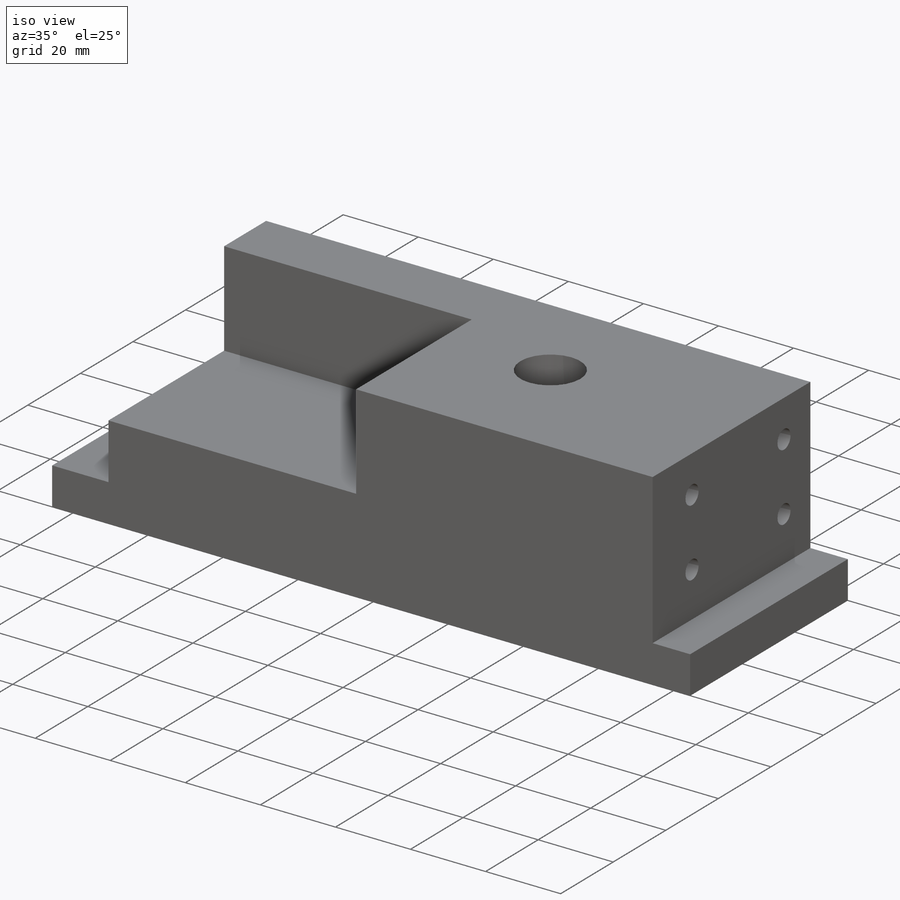
[diagram: iso view]
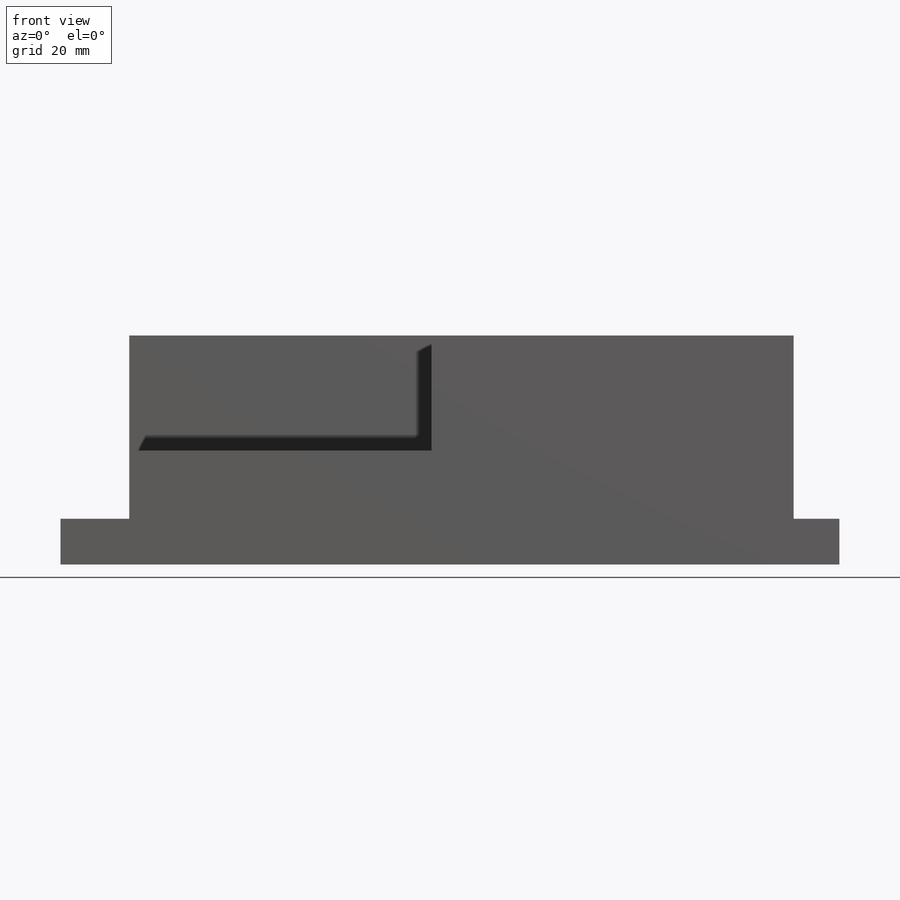
[diagram: front view]
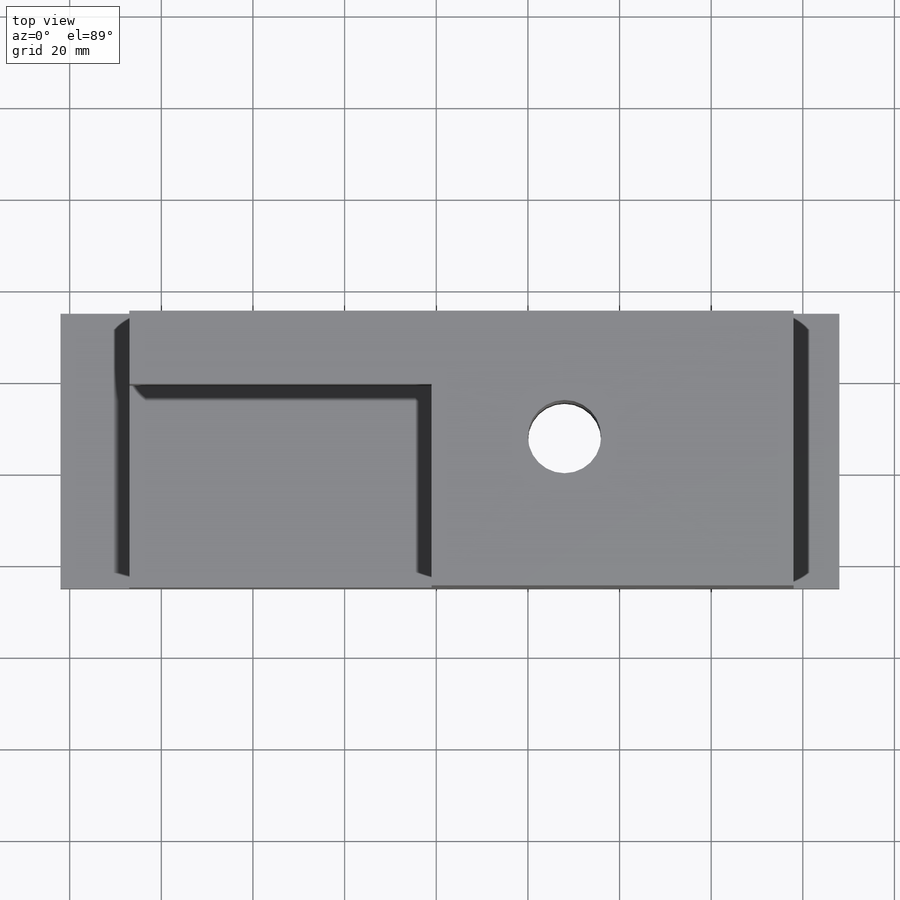
[diagram: top view]
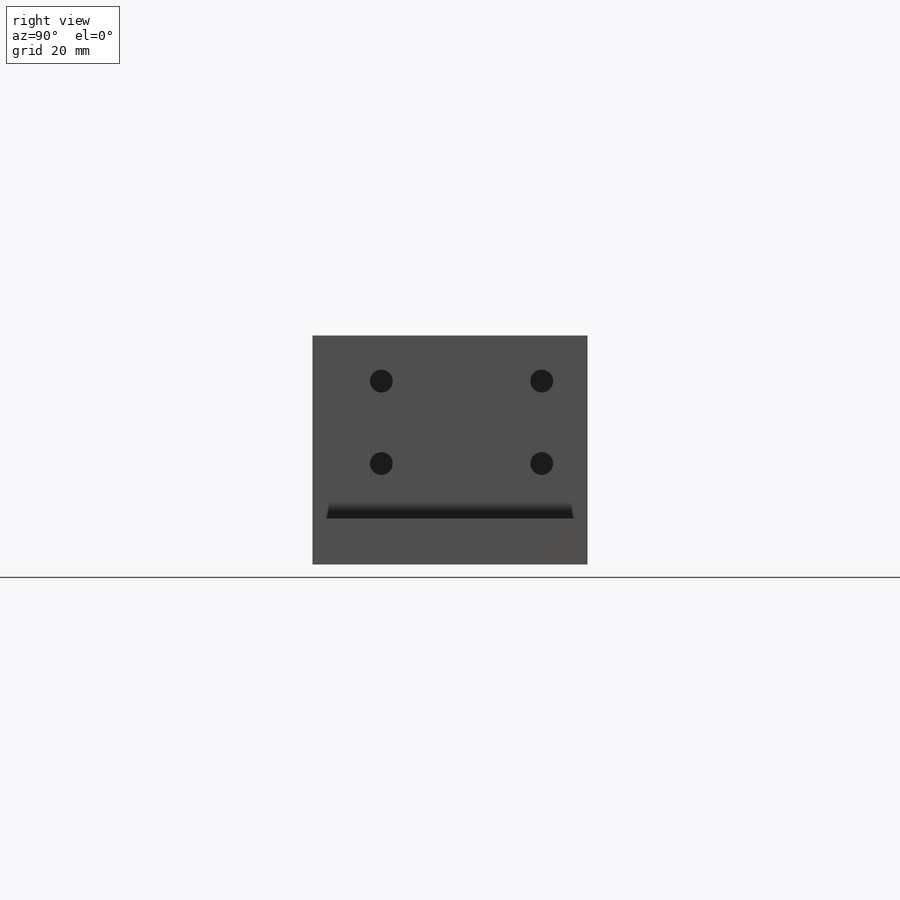
[diagram: right view]
SOLIDWORKS PART (.sldprt)
format: sldprt  version: not decoded by parser v0  size: 348,672 bytes
history: native  units: mm
features: sketch x9, thread x7, cut_extrude x6, plane x3, extrude x3, material x1 (+9 scaffold rows collapsed)
feature tree (38):
  scaffold x9  (default folders/planes/origin — collapsed)
  material  "Material <nicht festgelegt>"
  plane  "Ebene vorne"
  plane  "Ebene oben"
  plane  "Ebene rechts"
  sketch  "Skizze1"  dims[D1=13.0mm D2=10.0mm D3=145.0mm D4=40.0mm D5=40.0mm D6=10.0mm]
  extrude  "Aufsatz-Linear austragen1"  Depth=65mm
  sketch  "Skizze3"  dims[D1=16.0mm D2=32.5mm D3=60.0mm]
  cut_extrude  "Schnitt-Linear austragen2"  Depth=85mm
  sketch  "Skizze4"  dims[D1=25.15mm D2=66.0mm]
  cut_extrude  "Schnitt-Linear austragen3"  Depth=120mm
  sketch  "Skizze5"  dims[D1=5.0mm D2=5.0mm D3=5.0mm D4=5.0mm D5=12.0mm D6=15.0mm D7=15.0mm D8=12.0mm D9=30.0mm D10=30.0mm D11=15.0mm D12=15.0mm]
  cut_extrude  "Schnitt-Linear austragen4"  [1 undecoded]
  thread  "Gewindedarstellung1"  Diameter=15mm  [1 undecoded]
  thread  "Gewindedarstellung2"  Diameter=15mm  [1 undecoded]
  thread  "Gewindedarstellung3"  Diameter=15mm  [1 undecoded]
  thread  "Gewindedarstellung4"  Diameter=15mm  [1 undecoded]
  sketch  "Skizze6"  dims[D1=5.0mm D2=5.0mm D3=15.0mm D4=15.0mm D5=8.0mm D6=8.0mm]
  cut_extrude  "Schnitt-Linear austragen5"  [1 undecoded]
  thread  "Gewindedarstellung5"  Diameter=12mm  [1 undecoded]
  thread  "Gewindedarstellung6"  Diameter=12mm  [1 undecoded]
  sketch  "Skizze7"  dims[D1=44.0mm D2=25.15mm]
  extrude  "Aufsatz-Linear austragen2"  Depth=66mm
  sketch  "Skizze8"  dims[D1=5.0mm D2=15.0mm D3=30.0mm]
  cut_extrude  "Schnitt-Linear austragen7"  [1 undecoded]
  thread  "Gewindedarstellung7"  Diameter=12mm  [1 undecoded]
  sketch  "Skizze9"
  cut_extrude  "Schnitt-Linear austragen8"  Depth=5mm
  sketch  "Skizze10"
  extrude  "Aufsatz-Linear austragen3"  Depth=2mm
decode coverage: 20 of 25 modeling features carry decoded parameters
note: 10 parameter values undecoded
summary: no parameter record found for 3 features
note: suppression state not decoded; provenance and decode notes live in map.json
